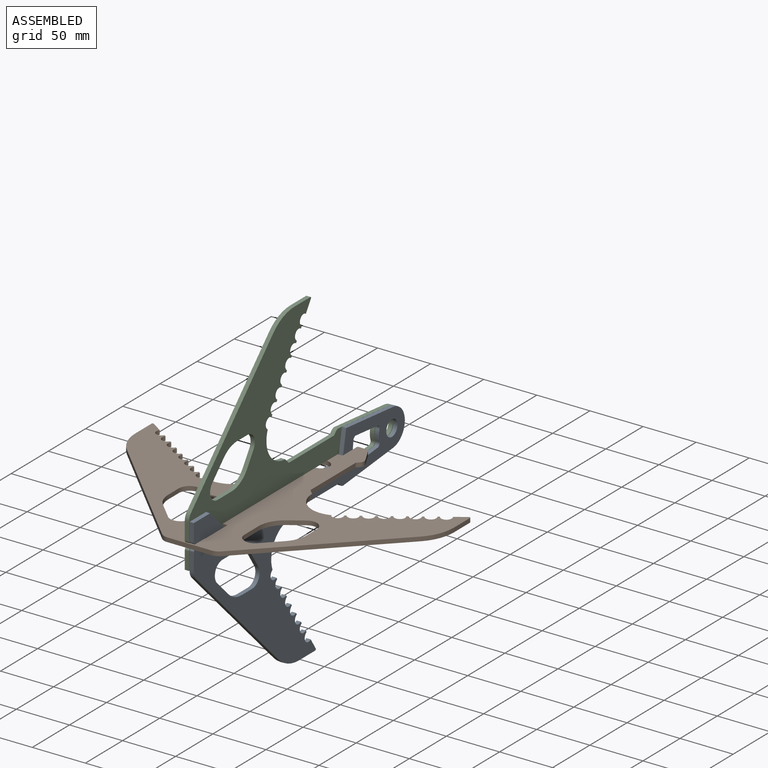
[diagram: assembled view]
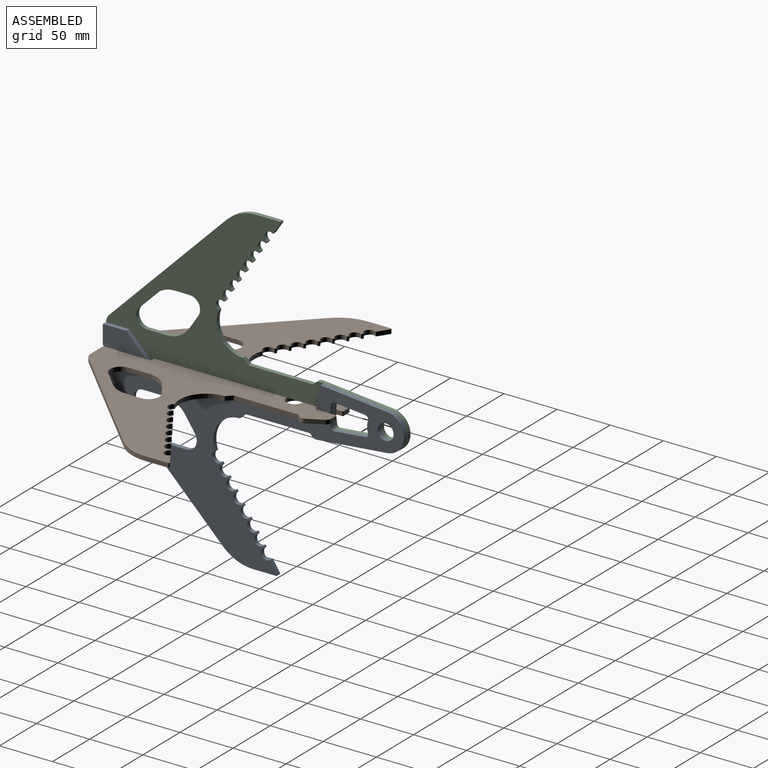
[diagram: assembled view, second angle]
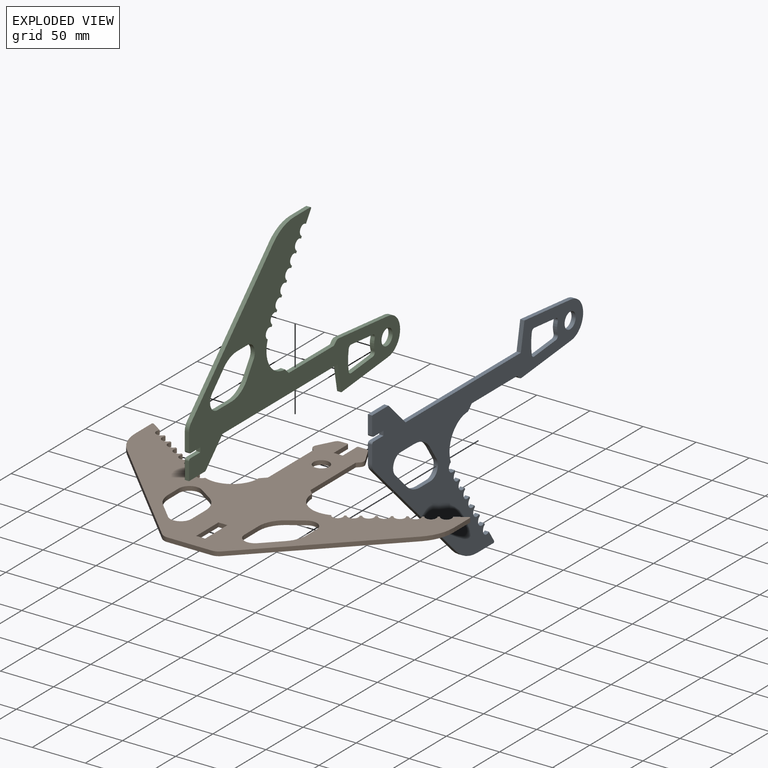
[diagram: exploded view]
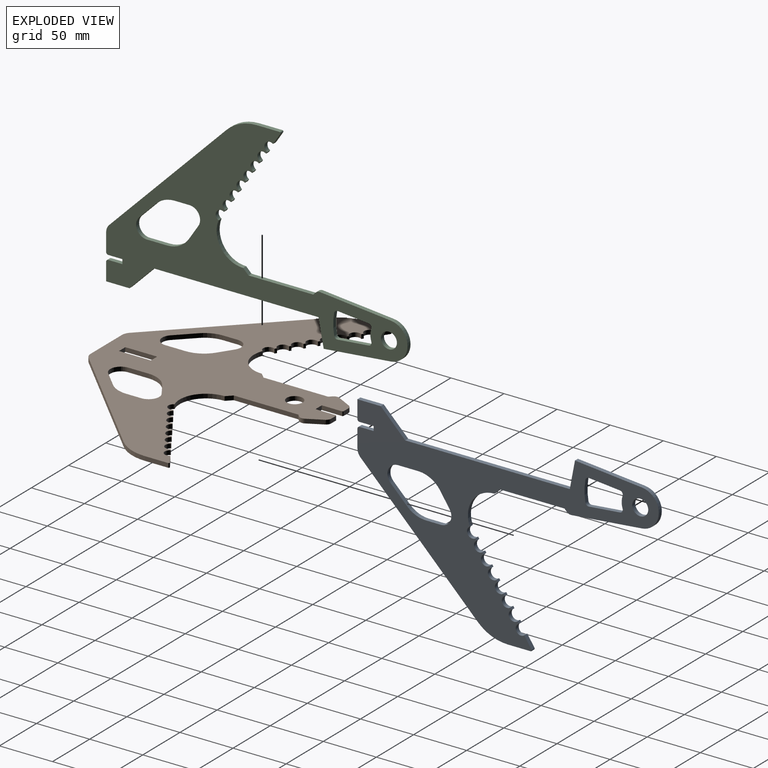
[diagram: exploded view, second angle]
ASSEMBLY  parts=3 mates=2
PART A: 59 faces, bbox 173.5x283.8x4 mm
  f0: plane 13.25x4mm, normal (-1,0,0), area 53mm2, adj f54,f55,f56,f57
  f1: plane 16.73x4mm, normal (0,-1,0), area 66.9mm2, adj f2,f55,f56,f57
  f2: cylinder r=10mm len=7.07mm, axis (0,0,-1), area 31.4mm2, adj f1,f3,f55,f56
  f3: plane 110.36x110.36mm, normal (0.71,-0.71,0), area 624.3mm2, adj f2,f4,f55,f56
  f4: cylinder r=40mm len=28.28mm, axis (0,0,-1), area 125.7mm2, adj f3,f5,f55,f56
  f5: plane 21.58x4mm, normal (1,0,0), area 86.3mm2, adj f4,f6,f55,f56
  f6: cylinder r=1mm len=4mm, axis (0,0,-1), area 8.6mm2, adj f5,f7,f55,f56
  f7: plane 10.39x6.84mm, normal (-0.55,0.84,0), area 49.7mm2, adj f6,f8,f55,f56
  f8: cylinder r=5mm len=9.38mm, axis (0,0,-1), area 65.9mm2, adj f7,f9,f55,f56
  f9: plane 4x1.69mm, normal (-0.55,0.84,0), area 8.1mm2, adj f8,f10,f55,f56
  f10: cylinder r=5mm len=9.35mm, axis (0,0,-1), area 65.5mm2, adj f9,f11,f55,f56
  f11: plane 4x1.69mm, normal (-0.55,0.84,0), area 8.1mm2, adj f10,f12,f55,f56
  f12: cylinder r=5mm len=9.32mm, axis (0,0,-1), area 65.1mm2, adj f11,f13,f55,f56
  f13: plane 4x1.68mm, normal (-0.55,0.84,0), area 8mm2, adj f12,f14,f55,f56
  f14: cylinder r=5mm len=9.29mm, axis (0,0,-1), area 64.6mm2, adj f13,f15,f55,f56
  f15: plane 4x1.68mm, normal (-0.55,0.84,0), area 8mm2, adj f14,f16,f55,f56
  f16: cylinder r=5mm len=9.26mm, axis (0,0,-1), area 64.2mm2, adj f15,f17,f55,f56
  f17: plane 4x1.67mm, normal (-0.55,0.84,0), area 8mm2, adj f16,f18,f55,f56
  f18: cylinder r=5mm len=9.24mm, axis (0,0,-1), area 63.7mm2, adj f17,f19,f55,f56
  f19: plane 4x1.67mm, normal (-0.55,0.84,0), area 8mm2, adj f18,f20,f55,f56
  f20: cylinder r=5mm len=9.21mm, axis (0,0,-1), area 63.3mm2, adj f19,f21,f55,f56
  f21: plane 4x1.67mm, normal (-0.55,0.84,0), area 8mm2, adj f20,f22,f55,f56
  f22: cylinder r=5mm len=9.43mm, axis (0,0,-1), area 64.8mm2, adj f21,f23,f55,f56
  f23: cylinder r=25mm len=34.32mm, axis (0,0,-1), area 195.3mm2, adj f22,f24,f55,f56
  f24: plane 5.01x5mm, normal (0.71,0.71,0), area 28.3mm2, adj f23,f25,f55,f56
  f25: plane 60.93x4mm, normal (1,0,0), area 243.7mm2, adj f24,f26,f55,f56
  f26: plane 4x2.39mm, normal (0.71,-0.71,0), area 13.5mm2, adj f25,f27,f55,f56
  f27: cylinder r=5mm len=4.29mm, axis (0,0,-1), area 18.8mm2, adj f26,f28,f55,f56
  f28: plane 66.33x6.38mm, normal (1,0.1,0), area 266.6mm2, adj f27,f29,f55,f56
  f29: cylinder r=17.5mm len=34.84mm, axis (0,0,-1), area 206.5mm2, adj f28,f30,f55,f56
  f30: plane 63.15x6.08mm, normal (-1,0.1,0), area 253.8mm2, adj f29,f31,f55,f56
  f31: plane 25.62x4.88mm, normal (-0.19,-0.98,0), area 104.3mm2, adj f30,f32,f55,f56
  f32: plane 155x4mm, normal (-1,0,0), area 620mm2, adj f31,f33,f55,f56
  f33: plane 23x23mm, normal (-0.71,0.71,0), area 130.1mm2, adj f32,f34,f55,f56
  f34: plane 22x4mm, normal (-1,0,0), area 88mm2, adj f33,f35,f55,f56
  f35: plane 16.73x4mm, normal (0,-1,0), area 66.9mm2, adj f34,f55,f56,f58
  f36: plane 13.25x4mm, normal (1,0,0), area 53mm2, adj f54,f55,f56,f58
  f37: plane 15.61x15.61mm, normal (-0.71,0.71,0), area 88.3mm2, adj f38,f51,f55,f56
  f38: cylinder r=10mm len=17.07mm, axis (0,0,-1), area 94.2mm2, adj f37,f39,f55,f56
  f39: plane 18.94x4mm, normal (1,0,0), area 75.8mm2, adj f38,f40,f55,f56
  f40: cylinder r=25mm len=20.88mm, axis (0,0,-1), area 98.8mm2, adj f39,f41,f55,f56
  f41: plane 13.25x8.73mm, normal (0.55,-0.84,0), area 63.5mm2, adj f40,f42,f55,f56
  f42: cylinder r=10mm len=15.5mm, axis (0,0,-1), area 86.1mm2, adj f41,f43,f55,f56
  f43: plane 13.98x4mm, normal (-1,0,0), area 55.9mm2, adj f42,f51,f55,f56
  f44: cylinder r=3mm len=4mm, axis (0,0,-1), area 21.5mm2, adj f45,f52,f55,f56
  f45: cylinder r=17.5mm len=10.92mm, axis (0,0,-1), area 44.4mm2, adj f44,f46,f55,f56
  f46: cylinder r=3mm len=4mm, axis (0,0,-1), area 21.5mm2, adj f45,f47,f55,f56
  f47: plane 29.16x4mm, normal (-1,-0.1,0), area 117.2mm2, adj f46,f48,f55,f56
  f48: cylinder r=3mm len=4mm, axis (0,0,-1), area 17.8mm2, adj f47,f49,f55,f56
  f49: cylinder r=52.5mm len=19.52mm, axis (0,0,-1), area 78.5mm2, adj f48,f50,f55,f56
  f50: cylinder r=3mm len=4mm, axis (0,0,-1), area 17.8mm2, adj f49,f52,f55,f56
  f51: cylinder r=25mm len=17.68mm, axis (0,0,-1), area 78.5mm2, adj f37,f43,f55,f56
  f52: plane 29.16x4mm, normal (1,-0.1,0), area 117.2mm2, adj f44,f50,f55,f56
  f53: cylinder r=7.5mm len=15mm, axis (0,0,-1), area 188.5mm2, adj f55,f56
  f54: plane 4.25x4mm, normal (0,-1,0), area 17mm2, adj f0,f36,f55,f56
  f55: plane 283.85x173.5mm, normal (0,0,1), area 13230mm2, adj f0,f1,f2,f3,f4,f5,f6,f7
  f56: plane 283.85x173.5mm, normal (0,0,-1), area 13230mm2, adj f0,f1,f2,f3,f4,f5,f6,f7
  f57: cylinder r=2mm len=4mm, axis (0,0,-1), area 12.6mm2, adj f0,f1,f55,f56
  f58: cylinder r=2mm len=4mm, axis (0,0,-1), area 12.6mm2, adj f35,f36,f55,f56
PART B: 87 faces, bbox 300x220x4 mm
  f0: cylinder r=10mm len=15.5mm, axis (0,0,-1), area 86.1mm2, adj f1,f79,f80,f81
  f1: plane 13.25x8.73mm, normal (-0.55,-0.84,0), area 63.5mm2, adj f0,f2,f80,f81
  f2: cylinder r=25mm len=20.88mm, axis (0,0,-1), area 98.8mm2, adj f1,f3,f80,f81
  f3: plane 18.94x4mm, normal (-1,0,0), area 75.8mm2, adj f2,f4,f80,f81
  f4: cylinder r=10mm len=17.07mm, axis (0,0,-1), area 94.2mm2, adj f3,f5,f80,f81
  f5: plane 15.61x15.61mm, normal (0.71,0.71,0), area 88.3mm2, adj f4,f6,f80,f81
  f6: cylinder r=25mm len=17.68mm, axis (0,0,-1), area 78.5mm2, adj f5,f79,f80,f81
  f7: plane 110.36x110.36mm, normal (-0.71,-0.71,0), area 624.3mm2, adj f8,f76,f80,f81
  f8: cylinder r=10mm len=7.07mm, axis (0,0,-1), area 31.4mm2, adj f7,f9,f80,f81
  f9: plane 41.72x4mm, normal (0,-1,0), area 166.9mm2, adj f8,f10,f80,f81
  f10: cylinder r=10mm len=7.07mm, axis (0,0,-1), area 31.4mm2, adj f9,f11,f80,f81
  f11: plane 110.36x110.36mm, normal (0.71,-0.71,0), area 624.3mm2, adj f10,f12,f80,f81
  f12: cylinder r=40mm len=28.28mm, axis (0,0,-1), area 125.7mm2, adj f11,f13,f80,f81
  f13: plane 21.58x4mm, normal (1,0,0), area 86.3mm2, adj f12,f14,f80,f81
  f14: cylinder r=1mm len=4mm, axis (0,0,-1), area 8.6mm2, adj f13,f15,f80,f81
  f15: plane 10.39x6.84mm, normal (-0.55,0.84,0), area 49.7mm2, adj f14,f16,f80,f81
  f16: cylinder r=5mm len=9.38mm, axis (0,0,-1), area 65.9mm2, adj f15,f17,f80,f81
  f17: plane 4x1.69mm, normal (-0.55,0.84,0), area 8.1mm2, adj f16,f18,f80,f81
  f18: cylinder r=5mm len=9.35mm, axis (0,0,-1), area 65.5mm2, adj f17,f19,f80,f81
  f19: plane 4x1.69mm, normal (-0.55,0.84,0), area 8.1mm2, adj f18,f20,f80,f81
  f20: cylinder r=5mm len=9.32mm, axis (0,0,-1), area 65.1mm2, adj f19,f21,f80,f81
  f21: plane 4x1.68mm, normal (-0.55,0.84,0), area 8mm2, adj f20,f22,f80,f81
  f22: cylinder r=5mm len=9.29mm, axis (0,0,-1), area 64.6mm2, adj f21,f23,f80,f81
  f23: plane 4x1.68mm, normal (-0.55,0.84,0), area 8mm2, adj f22,f24,f80,f81
  f24: cylinder r=5mm len=9.26mm, axis (0,0,-1), area 64.2mm2, adj f23,f25,f80,f81
  f25: plane 4x1.67mm, normal (-0.55,0.84,0), area 8mm2, adj f24,f26,f80,f81
  f26: cylinder r=5mm len=9.24mm, axis (0,0,-1), area 63.7mm2, adj f25,f27,f80,f81
  f27: plane 4x1.67mm, normal (-0.55,0.84,0), area 8mm2, adj f26,f28,f80,f81
  f28: cylinder r=5mm len=9.21mm, axis (0,0,-1), area 63.3mm2, adj f27,f29,f80,f81
  f29: plane 4x1.67mm, normal (-0.55,0.84,0), area 8mm2, adj f28,f30,f80,f81
  f30: cylinder r=5mm len=9.43mm, axis (0,0,-1), area 64.8mm2, adj f29,f31,f80,f81
  f31: cylinder r=25mm len=34.32mm, axis (0,0,-1), area 195.3mm2, adj f30,f32,f80,f81
  f32: plane 5.01x5mm, normal (0.71,0.71,0), area 28.3mm2, adj f31,f33,f80,f81
  f33: plane 60.93x4mm, normal (1,0,0), area 243.7mm2, adj f32,f34,f80,f81
  f34: plane 4x2.39mm, normal (0.71,-0.71,0), area 13.5mm2, adj f33,f35,f80,f81
  f35: cylinder r=5mm len=5.86mm, axis (0,0,-1), area 25.4mm2, adj f34,f36,f80,f81
  f36: plane 14.06x7.38mm, normal (0.89,0.46,0), area 63.5mm2, adj f35,f80,f81,f83
  f37: plane 6.23x4mm, normal (0,1,0), area 24.9mm2, adj f80,f81,f83,f85
  f38: plane 19x4mm, normal (-1,0,0), area 76mm2, adj f39,f80,f81,f85
  f39: plane 8.5x4mm, normal (0,1,0), area 34mm2, adj f38,f40,f80,f81
  f40: plane 19x4mm, normal (1,0,0), area 76mm2, adj f39,f80,f81,f86
  f41: plane 6.23x4mm, normal (0,1,0), area 24.9mm2, adj f80,f81,f84,f86
  f42: plane 14.06x7.38mm, normal (-0.89,0.46,0), area 63.5mm2, adj f43,f80,f81,f84
  f43: cylinder r=5mm len=5.86mm, axis (0,0,-1), area 25.4mm2, adj f42,f44,f80,f81
  f44: plane 4x2.39mm, normal (-0.71,-0.71,0), area 13.5mm2, adj f43,f45,f80,f81
  f45: plane 60.93x4mm, normal (-1,0,0), area 243.7mm2, adj f44,f46,f80,f81
  f46: plane 5.01x5mm, normal (-0.71,0.71,0), area 28.3mm2, adj f45,f47,f80,f81
  f47: cylinder r=25mm len=34.32mm, axis (0,0,-1), area 195.3mm2, adj f46,f48,f80,f81
  f48: cylinder r=5mm len=9.43mm, axis (0,0,-1), area 64.8mm2, adj f47,f49,f80,f81
  f49: plane 4x1.67mm, normal (0.55,0.84,0), area 8mm2, adj f48,f50,f80,f81
  f50: cylinder r=5mm len=9.21mm, axis (0,0,-1), area 63.3mm2, adj f49,f51,f80,f81
  f51: plane 4x1.67mm, normal (0.55,0.84,0), area 8mm2, adj f50,f52,f80,f81
  f52: cylinder r=5mm len=9.24mm, axis (0,0,-1), area 63.7mm2, adj f51,f53,f80,f81
  f53: plane 4x1.67mm, normal (0.55,0.84,0), area 8mm2, adj f52,f54,f80,f81
  f54: cylinder r=5mm len=9.26mm, axis (0,0,-1), area 64.2mm2, adj f53,f55,f80,f81
  f55: plane 4x1.68mm, normal (0.55,0.84,0), area 8mm2, adj f54,f56,f80,f81
  f56: cylinder r=5mm len=9.29mm, axis (0,0,-1), area 64.6mm2, adj f55,f57,f80,f81
  f57: plane 4x1.68mm, normal (0.55,0.84,0), area 8mm2, adj f56,f58,f80,f81
  f58: cylinder r=5mm len=9.32mm, axis (0,0,-1), area 65.1mm2, adj f57,f59,f80,f81
  f59: plane 4x1.69mm, normal (0.55,0.84,0), area 8.1mm2, adj f58,f60,f80,f81
  f60: cylinder r=5mm len=9.35mm, axis (0,0,-1), area 65.5mm2, adj f59,f61,f80,f81
  f61: plane 4x1.69mm, normal (0.55,0.84,0), area 8.1mm2, adj f60,f62,f80,f81
  f62: cylinder r=5mm len=9.38mm, axis (0,0,-1), area 65.9mm2, adj f61,f63,f80,f81
  f63: plane 10.39x6.84mm, normal (0.55,0.84,0), area 49.7mm2, adj f62,f80,f81,f82
  f64: plane 21.58x4mm, normal (-1,0,0), area 86.3mm2, adj f76,f80,f81,f82
  f65: plane 30x4mm, normal (-1,0,0), area 120mm2, adj f66,f77,f80,f81
  f66: plane 8.5x4mm, normal (0,1,0), area 34mm2, adj f65,f67,f80,f81
  f67: plane 30x4mm, normal (1,0,0), area 120mm2, adj f66,f77,f80,f81
  f68: cylinder r=10mm len=17.07mm, axis (0,0,-1), area 94.2mm2, adj f69,f78,f80,f81
  f69: plane 18.94x4mm, normal (1,0,0), area 75.8mm2, adj f68,f70,f80,f81
  f70: cylinder r=25mm len=20.88mm, axis (0,0,-1), area 98.8mm2, adj f69,f71,f80,f81
  f71: plane 13.25x8.73mm, normal (0.55,-0.84,0), area 63.5mm2, adj f70,f72,f80,f81
  f72: cylinder r=10mm len=15.5mm, axis (0,0,-1), area 86.1mm2, adj f71,f73,f80,f81
  f73: plane 13.98x4mm, normal (-1,0,0), area 55.9mm2, adj f72,f74,f80,f81
  f74: cylinder r=25mm len=17.68mm, axis (0,0,-1), area 78.5mm2, adj f73,f78,f80,f81
  f75: cylinder r=7.5mm len=15mm, axis (0,0,-1), area 188.5mm2, adj f80,f81
  f76: cylinder r=40mm len=28.28mm, axis (0,0,-1), area 125.7mm2, adj f7,f64,f80,f81
  f77: plane 8.5x4mm, normal (0,-1,0), area 34mm2, adj f65,f67,f80,f81
  f78: plane 15.61x15.61mm, normal (-0.71,0.71,0), area 88.3mm2, adj f68,f74,f80,f81
  f79: plane 13.98x4mm, normal (1,0,0), area 55.9mm2, adj f0,f6,f80,f81
  f80: plane 300x220mm, normal (0,0,1), area 21600.3mm2, adj f0,f1,f2,f3,f4,f5,f6,f7
  f81: plane 300x220mm, normal (0,0,-1), area 21600.3mm2, adj f0,f1,f2,f3,f4,f5,f6,f7
  f82: cylinder r=1mm len=4mm, axis (0,0,-1), area 8.6mm2, adj f63,f64,f80,f81
  f83: cylinder r=5mm len=4.43mm, axis (0,0,-1), area 21.7mm2, adj f36,f37,f80,f81
  f84: cylinder r=5mm len=4.43mm, axis (0,0,1), area 21.7mm2, adj f41,f42,f80,f81
  f85: cylinder r=1mm len=4mm, axis (0,0,-1), area 6.3mm2, adj f37,f38,f80,f81
  f86: cylinder r=1mm len=4mm, axis (0,0,1), area 6.3mm2, adj f40,f41,f80,f81
PART C: same geometry as A
PLACE A rot(axis=(0,1,0),90deg) t=(32.92,53.16,13.78)mm
PLACE B t=(32.67,-56.58,57.34)mm
PLACE C rot(axis=(0,-1,0),90deg) t=(32.42,53.16,104.91)mm
MATE slider A.f54 <-> B.f66  axis (0,-1,0) through (32.92,-41.58,57.34)mm
MATE slider C.f0 <-> B.f80  axis (0,0,1) through (28.42,-41.58,61.34)mm
